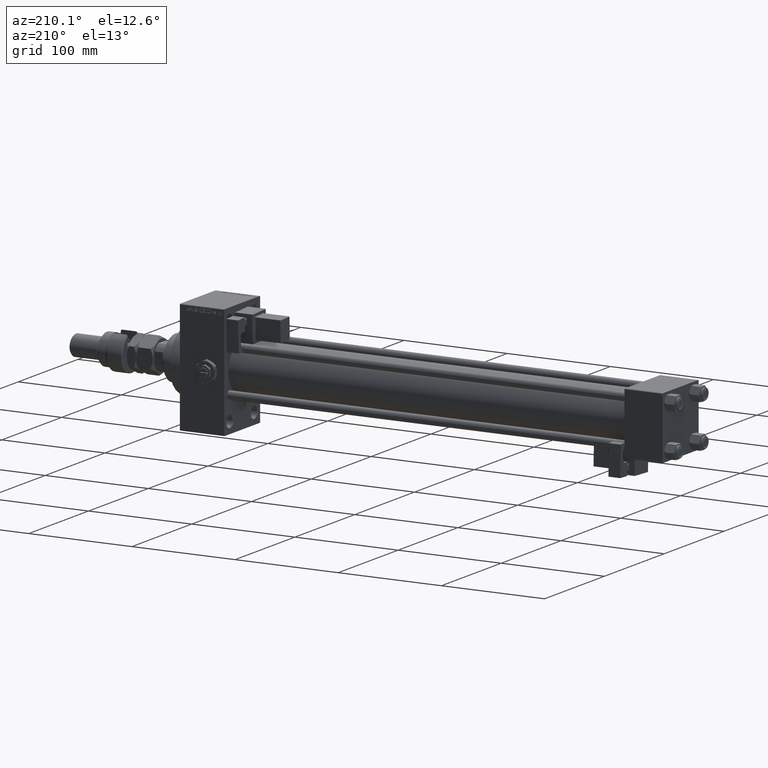
[diagram: clean part render]
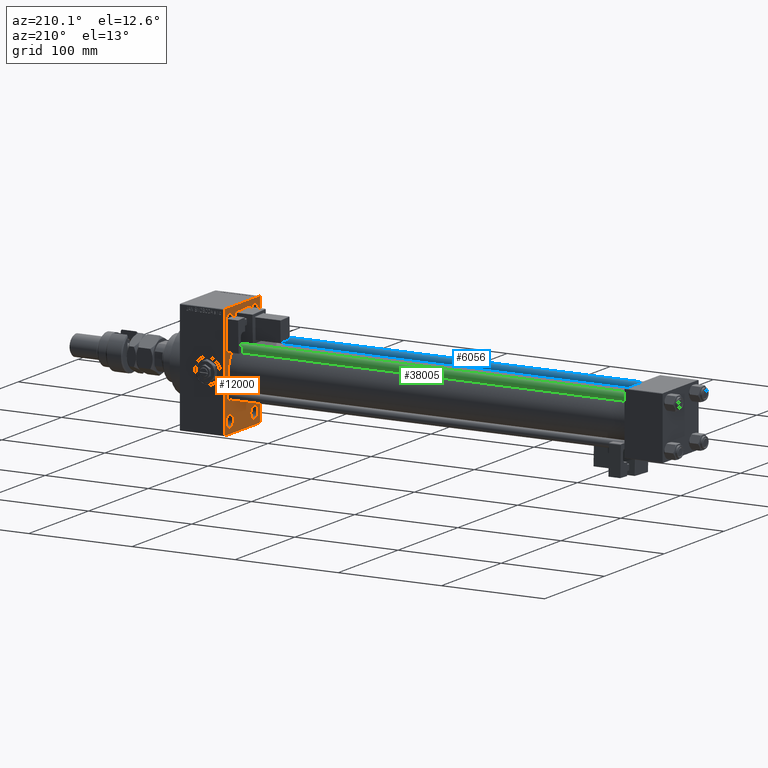
[diagram: same view with three faces highlighted in distinct colors, each labeled with its STEP entity id]
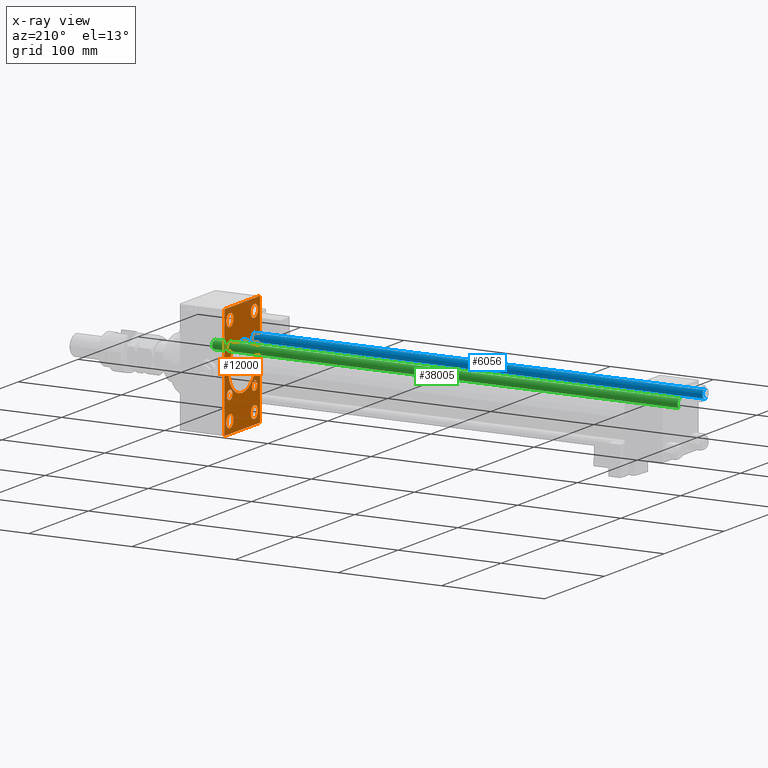
[diagram: x-ray of the same camera — body ghosted, the three highlighted faces saturated]
A machine part, auxiliary view with three faces highlighted in distinct colors.
The next image is the same camera in x-ray (body ghosted, the three faces saturated) — at least one of them is partly hidden behind the body in this view.
Their STEP definitions:

[orange] entity #12000 — the highlighted planar face has unit normal (-1, 0, 0).
#18 = FACE_BOUND ( 'NONE', #28261, .T. ) ;
#103 = CIRCLE ( 'NONE', #28907, 4.500000000000007105 ) ;
#280 = EDGE_CURVE ( 'NONE', #49568, #43497, #7739, .T. ) ;
#419 = ORIENTED_EDGE ( 'NONE', *, *, #6253, .T. ) ;
#464 = EDGE_CURVE ( 'NONE', #31702, #3292, #34796, .T. ) ;
#614 = EDGE_CURVE ( 'NONE', #33560, #20259, #29334, .T. ) ;
#820 = DIRECTION ( 'NONE',  ( 0.000000000000000000, 0.000000000000000000, -1.000000000000000000 ) ) ;
#829 = DIRECTION ( 'NONE',  ( 1.000000000000000000, -0.000000000000000000, 0.000000000000000000 ) ) ;
#1360 = DIRECTION ( 'NONE',  ( 1.000000000000000000, 0.000000000000000000, 0.000000000000000000 ) ) ;
#1432 = EDGE_CURVE ( 'NONE', #20259, #16029, #17971, .T. ) ;
#1434 = CARTESIAN_POINT ( 'NONE',  ( 425.0000000000000000, 29.99999999999999645, 53.99999999999999289 ) ) ;
#2351 = CIRCLE ( 'NONE', #24176, 4.500000000000007105 ) ;
#2649 = CARTESIAN_POINT ( 'NONE',  ( 425.0000000000000000, -42.00000000000216716, -41.99999999999604938 ) ) ;
#2703 = DIRECTION ( 'NONE',  ( 1.000000000000000000, -0.000000000000000000, 0.000000000000000000 ) ) ;
#2764 = CARTESIAN_POINT ( 'NONE',  ( 425.0000000000000000, 20.84999999999999787, -20.85000000000000142 ) ) ;
#3099 = CARTESIAN_POINT ( 'NONE',  ( 425.0000000000000000, 20.50000000000000000, -37.50000000000004974 ) ) ;
#3239 = DIRECTION ( 'NONE',  ( 1.000000000000000000, -0.000000000000000000, 0.000000000000000000 ) ) ;
#3292 = VERTEX_POINT ( 'NONE', #40606 ) ;
#3402 = ORIENTED_EDGE ( 'NONE', *, *, #35435, .T. ) ;
#3443 = CARTESIAN_POINT ( 'NONE',  ( 425.0000000000000000, 20.50000000000000000, 49.49999999999995026 ) ) ;
#5050 = EDGE_LOOP ( 'NONE', ( #39511, #26880 ) ) ;
#5071 = AXIS2_PLACEMENT_3D ( 'NONE', #21901, #13420, #38019 ) ;
#5101 = CARTESIAN_POINT ( 'NONE',  ( 425.0000000000000000, 20.84999999999999787, -20.85000000000000142 ) ) ;
#5180 = VERTEX_POINT ( 'NONE', #43444 ) ;
#5304 = EDGE_CURVE ( 'NONE', #53757, #16678, #103, .T. ) ;
#5717 = DIRECTION ( 'NONE',  ( 0.000000000000000000, 0.000000000000000000, 1.000000000000000000 ) ) ;
#6217 = CARTESIAN_POINT ( 'NONE',  ( 425.0000000000000000, 29.49999999999993960, -54.49999999999999289 ) ) ;
#6253 = EDGE_CURVE ( 'NONE', #21350, #39434, #20214, .T. ) ;
#6463 = ORIENTED_EDGE ( 'NONE', *, *, #5304, .T. ) ;
#6687 = DIRECTION ( 'NONE',  ( 0.000000000000000000, 0.000000000000000000, 1.000000000000000000 ) ) ;
#6831 = VERTEX_POINT ( 'NONE', #3443 ) ;
#6880 = VECTOR ( 'NONE', #17702, 1000.000000000000000 ) ;
#7123 = EDGE_LOOP ( 'NONE', ( #52697, #419 ) ) ;
#7480 = EDGE_LOOP ( 'NONE', ( #42572, #29703 ) ) ;
#7739 = CIRCLE ( 'NONE', #43642, 5.999999999999950262 ) ;
#8166 = VERTEX_POINT ( 'NONE', #26321 ) ;
#8267 = CARTESIAN_POINT ( 'NONE',  ( 425.0000000000000000, 41.99999999999996447, -41.99999999999996447 ) ) ;
#8470 = VECTOR ( 'NONE', #53739, 1000.000000000000000 ) ;
#8846 = ORIENTED_EDGE ( 'NONE', *, *, #280, .T. ) ;
#9337 = AXIS2_PLACEMENT_3D ( 'NONE', #42040, #29746, #33858 ) ;
#9427 = ORIENTED_EDGE ( 'NONE', *, *, #28089, .T. ) ;
#9950 = CARTESIAN_POINT ( 'NONE',  ( 425.0000000000000000, 2.146024240737012665E-16, -23.00000000000000000 ) ) ;
#10012 = ORIENTED_EDGE ( 'NONE', *, *, #39690, .T. ) ;
#10176 = EDGE_CURVE ( 'NONE', #49205, #44414, #51423, .T. ) ;
#10323 = CARTESIAN_POINT ( 'NONE',  ( 425.0000000000000000, -30.00000000000000000, -53.99999999999998579 ) ) ;
#10831 = VERTEX_POINT ( 'NONE', #23906 ) ;
#11026 = CARTESIAN_POINT ( 'NONE',  ( 425.0000000000000000, -20.50000000000000000, 37.50000000000004974 ) ) ;
#11037 = LINE ( 'NONE', #27729, #52407 ) ;
#11166 = CARTESIAN_POINT ( 'NONE',  ( 425.0000000000000000, -20.84999999999999076, 20.85000000000000497 ) ) ;
#11222 = AXIS2_PLACEMENT_3D ( 'NONE', #38995, #44915, #30796 ) ;
#11224 = DIRECTION ( 'NONE',  ( 0.000000000000000000, 0.000000000000000000, 1.000000000000000000 ) ) ;
#11447 = CIRCLE ( 'NONE', #36772, 4.500000000000007105 ) ;
#12000 = ADVANCED_FACE ( 'NONE', ( #36396, #31488, #25171, #20811, #37738, #25440, #21356, #18, #42108, #38007 ), #45663, .T. ) ;
#12002 = AXIS2_PLACEMENT_3D ( 'NONE', #27480, #44147, #6687 ) ;
#12359 = AXIS2_PLACEMENT_3D ( 'NONE', #39341, #1360, #820 ) ;
#12804 = CIRCLE ( 'NONE', #45103, 23.00000000000000000 ) ;
#13099 = VECTOR ( 'NONE', #29598, 1000.000000000000114 ) ;
#13420 = DIRECTION ( 'NONE',  ( 1.000000000000000000, -0.000000000000000000, 0.000000000000000000 ) ) ;
#13650 = EDGE_LOOP ( 'NONE', ( #47853, #3402, #41662, #45295, #30112, #29180, #44083, #16950 ) ) ;
#13866 = AXIS2_PLACEMENT_3D ( 'NONE', #16542, #33215, #46301 ) ;
#13970 = DIRECTION ( 'NONE',  ( 0.000000000000000000, 0.000000000000000000, 1.000000000000000000 ) ) ;
#13994 = CARTESIAN_POINT ( 'NONE',  ( 425.0000000000000000, -30.00000000000000000, 54.50000000000000000 ) ) ;
#14869 = EDGE_CURVE ( 'NONE', #3292, #31702, #15908, .T. ) ;
#15169 = DIRECTION ( 'NONE',  ( -0.000000000000000000, 0.7071067811865843211, 0.7071067811865107133 ) ) ;
#15411 = CARTESIAN_POINT ( 'NONE',  ( 425.0000000000000000, 20.50000000000000000, 43.50000000000000000 ) ) ;
#15419 = CIRCLE ( 'NONE', #43348, 5.999999999999950262 ) ;
#15907 = CIRCLE ( 'NONE', #35993, 5.999999999999950262 ) ;
#15908 = CIRCLE ( 'NONE', #37707, 5.999999999999950262 ) ;
#15940 = VECTOR ( 'NONE', #46342, 1000.000000000000000 ) ;
#16029 = VERTEX_POINT ( 'NONE', #23521 ) ;
#16088 = DIRECTION ( 'NONE',  ( 0.000000000000000000, 0.000000000000000000, 1.000000000000000000 ) ) ;
#16211 = VECTOR ( 'NONE', #29563, 1000.000000000000000 ) ;
#16349 = CARTESIAN_POINT ( 'NONE',  ( 425.0000000000000000, -20.84999999999999076, 20.85000000000000497 ) ) ;
#16414 = CARTESIAN_POINT ( 'NONE',  ( 425.0000000000000000, -20.50000000000000000, -37.50000000000004974 ) ) ;
#16542 = CARTESIAN_POINT ( 'NONE',  ( 425.0000000000000000, -20.50000000000000000, -43.50000000000000000 ) ) ;
#16678 = VERTEX_POINT ( 'NONE', #27758 ) ;
#16950 = ORIENTED_EDGE ( 'NONE', *, *, #614, .T. ) ;
#17217 = CIRCLE ( 'NONE', #47743, 4.500000000000007105 ) ;
#17237 = DIRECTION ( 'NONE',  ( -1.000000000000000000, 0.000000000000000000, -0.000000000000000000 ) ) ;
#17502 = CIRCLE ( 'NONE', #38441, 5.999999999999950262 ) ;
#17702 = DIRECTION ( 'NONE',  ( 0.000000000000000000, -1.000000000000000000, -1.156482317317871478E-16 ) ) ;
#17971 = LINE ( 'NONE', #26174, #6880 ) ;
#18504 = VERTEX_POINT ( 'NONE', #1434 ) ;
#18525 = CARTESIAN_POINT ( 'NONE',  ( 425.0000000000000000, 20.84999999999999787, -16.34999999999999432 ) ) ;
#18652 = VERTEX_POINT ( 'NONE', #44065 ) ;
#18961 = CARTESIAN_POINT ( 'NONE',  ( 425.0000000000000000, -2.602085213965210642E-15, 23.00000000000000000 ) ) ;
#20143 = CARTESIAN_POINT ( 'NONE',  ( 425.0000000000000000, 20.84999999999999787, 25.35000000000000853 ) ) ;
#20214 = CIRCLE ( 'NONE', #12359, 23.00000000000000000 ) ;
#20259 = VERTEX_POINT ( 'NONE', #6217 ) ;
#20732 = VERTEX_POINT ( 'NONE', #39505 ) ;
#20811 = FACE_BOUND ( 'NONE', #7480, .T. ) ;
#20842 = ORIENTED_EDGE ( 'NONE', *, *, #14869, .T. ) ;
#21012 = DIRECTION ( 'NONE',  ( 0.000000000000000000, 0.000000000000000000, 1.000000000000000000 ) ) ;
#21191 = DIRECTION ( 'NONE',  ( 1.000000000000000000, -0.000000000000000000, 0.000000000000000000 ) ) ;
#21350 = VERTEX_POINT ( 'NONE', #9950 ) ;
#21356 = FACE_BOUND ( 'NONE', #46019, .T. ) ;
#21901 = CARTESIAN_POINT ( 'NONE',  ( 425.0000000000000000, 20.84999999999999787, 20.85000000000000142 ) ) ;
#22482 = DIRECTION ( 'NONE',  ( 0.000000000000000000, 0.000000000000000000, -1.000000000000000000 ) ) ;
#22620 = CIRCLE ( 'NONE', #13866, 5.999999999999950262 ) ;
#23521 = CARTESIAN_POINT ( 'NONE',  ( 425.0000000000000000, -29.50000000000005684, -54.50000000000000000 ) ) ;
#23629 = DIRECTION ( 'NONE',  ( 0.000000000000000000, -1.000000000000000000, 1.156482317317871478E-16 ) ) ;
#23906 = CARTESIAN_POINT ( 'NONE',  ( 425.0000000000000000, 29.50000000000004974, 54.49999999999999289 ) ) ;
#24176 = AXIS2_PLACEMENT_3D ( 'NONE', #5101, #25617, #49929 ) ;
#24214 = VERTEX_POINT ( 'NONE', #35603 ) ;
#24542 = EDGE_LOOP ( 'NONE', ( #41287, #8846 ) ) ;
#24601 = DIRECTION ( 'NONE',  ( 1.000000000000000000, -0.000000000000000000, 0.000000000000000000 ) ) ;
#25171 = FACE_BOUND ( 'NONE', #24542, .T. ) ;
#25266 = EDGE_CURVE ( 'NONE', #18504, #33560, #50586, .T. ) ;
#25440 = FACE_BOUND ( 'NONE', #5050, .T. ) ;
#25452 = CARTESIAN_POINT ( 'NONE',  ( 425.0000000000000000, 29.99999999999999645, -53.99999999999993605 ) ) ;
#25617 = DIRECTION ( 'NONE',  ( 1.000000000000000000, -0.000000000000000000, 0.000000000000000000 ) ) ;
#25682 = DIRECTION ( 'NONE',  ( 1.000000000000000000, 0.000000000000000000, 0.000000000000000000 ) ) ;
#25799 = EDGE_LOOP ( 'NONE', ( #20842, #29203 ) ) ;
#26133 = CARTESIAN_POINT ( 'NONE',  ( 425.0000000000000000, 42.00000000000166267, 41.99999999999699440 ) ) ;
#26174 = CARTESIAN_POINT ( 'NONE',  ( 425.0000000000000000, 29.99999999999999645, -54.49999999999999289 ) ) ;
#26321 = CARTESIAN_POINT ( 'NONE',  ( 425.0000000000000000, -20.84999999999999076, 16.34999999999999787 ) ) ;
#26880 = ORIENTED_EDGE ( 'NONE', *, *, #36378, .T. ) ;
#27200 = CARTESIAN_POINT ( 'NONE',  ( 425.0000000000000000, -41.99999999999841549, 42.00000000000278533 ) ) ;
#27447 = DIRECTION ( 'NONE',  ( 0.000000000000000000, 0.000000000000000000, 1.000000000000000000 ) ) ;
#27480 = CARTESIAN_POINT ( 'NONE',  ( 425.0000000000000000, 20.84999999999999787, 20.85000000000000142 ) ) ;
#27531 = CARTESIAN_POINT ( 'NONE',  ( 425.0000000000000000, -20.84999999999999076, 25.35000000000001208 ) ) ;
#27651 = EDGE_CURVE ( 'NONE', #39434, #21350, #12804, .T. ) ;
#27696 = CARTESIAN_POINT ( 'NONE',  ( 425.0000000000000000, -20.84999999999999076, -16.34999999999999787 ) ) ;
#27729 = CARTESIAN_POINT ( 'NONE',  ( 425.0000000000000000, 29.99999999999999645, 54.49999999999999289 ) ) ;
#27758 = CARTESIAN_POINT ( 'NONE',  ( 425.0000000000000000, -20.84999999999999076, -25.35000000000001208 ) ) ;
#28089 = EDGE_CURVE ( 'NONE', #18652, #52439, #2351, .T. ) ;
#28132 = ORIENTED_EDGE ( 'NONE', *, *, #39140, .T. ) ;
#28261 = EDGE_LOOP ( 'NONE', ( #6463, #36510 ) ) ;
#28660 = VERTEX_POINT ( 'NONE', #16414 ) ;
#28907 = AXIS2_PLACEMENT_3D ( 'NONE', #33310, #49687, #21012 ) ;
#29026 = EDGE_CURVE ( 'NONE', #8166, #43291, #17217, .T. ) ;
#29150 = VERTEX_POINT ( 'NONE', #38989 ) ;
#29180 = ORIENTED_EDGE ( 'NONE', *, *, #49730, .T. ) ;
#29203 = ORIENTED_EDGE ( 'NONE', *, *, #464, .T. ) ;
#29334 = LINE ( 'NONE', #8267, #13099 ) ;
#29560 = DIRECTION ( 'NONE',  ( 1.000000000000000000, -0.000000000000000000, 0.000000000000000000 ) ) ;
#29563 = DIRECTION ( 'NONE',  ( 0.000000000000000000, 0.000000000000000000, -1.000000000000000000 ) ) ;
#29598 = DIRECTION ( 'NONE',  ( -0.000000000000000000, -0.7071067811865474617, -0.7071067811865474617 ) ) ;
#29635 = EDGE_CURVE ( 'NONE', #43291, #8166, #41557, .T. ) ;
#29703 = ORIENTED_EDGE ( 'NONE', *, *, #30803, .T. ) ;
#29746 = DIRECTION ( 'NONE',  ( 1.000000000000000000, -0.000000000000000000, 0.000000000000000000 ) ) ;
#30112 = ORIENTED_EDGE ( 'NONE', *, *, #42356, .F. ) ;
#30232 = LINE ( 'NONE', #26133, #15940 ) ;
#30796 = DIRECTION ( 'NONE',  ( 0.000000000000000000, 0.000000000000000000, 1.000000000000000000 ) ) ;
#30803 = EDGE_CURVE ( 'NONE', #29150, #6831, #15419, .T. ) ;
#31488 = FACE_BOUND ( 'NONE', #40062, .T. ) ;
#31702 = VERTEX_POINT ( 'NONE', #11026 ) ;
#31751 = DIRECTION ( 'NONE',  ( 1.000000000000000000, -0.000000000000000000, 0.000000000000000000 ) ) ;
#32352 = DIRECTION ( 'NONE',  ( 1.000000000000000000, -0.000000000000000000, 0.000000000000000000 ) ) ;
#32838 = CARTESIAN_POINT ( 'NONE',  ( 425.0000000000000000, 0.000000000000000000, 0.000000000000000000 ) ) ;
#33215 = DIRECTION ( 'NONE',  ( 1.000000000000000000, -0.000000000000000000, 0.000000000000000000 ) ) ;
#33310 = CARTESIAN_POINT ( 'NONE',  ( 425.0000000000000000, -20.84999999999999076, -20.85000000000000497 ) ) ;
#33552 = EDGE_CURVE ( 'NONE', #43352, #20732, #37346, .T. ) ;
#33560 = VERTEX_POINT ( 'NONE', #25452 ) ;
#33858 = DIRECTION ( 'NONE',  ( 0.000000000000000000, 0.000000000000000000, 1.000000000000000000 ) ) ;
#34166 = ORIENTED_EDGE ( 'NONE', *, *, #29026, .T. ) ;
#34796 = CIRCLE ( 'NONE', #11222, 5.999999999999950262 ) ;
#35328 = EDGE_CURVE ( 'NONE', #43497, #49568, #48636, .T. ) ;
#35435 = EDGE_CURVE ( 'NONE', #16029, #44414, #40089, .T. ) ;
#35477 = AXIS2_PLACEMENT_3D ( 'NONE', #11166, #2703, #5717 ) ;
#35603 = CARTESIAN_POINT ( 'NONE',  ( 425.0000000000000000, -29.49999999999988987, 54.50000000000000000 ) ) ;
#35741 = CARTESIAN_POINT ( 'NONE',  ( 425.0000000000000000, 20.50000000000000000, -49.49999999999995026 ) ) ;
#35993 = AXIS2_PLACEMENT_3D ( 'NONE', #50530, #24601, #49457 ) ;
#36046 = DIRECTION ( 'NONE',  ( 1.000000000000000000, -0.000000000000000000, 0.000000000000000000 ) ) ;
#36175 = ORIENTED_EDGE ( 'NONE', *, *, #45165, .T. ) ;
#36314 = EDGE_CURVE ( 'NONE', #49205, #24214, #47680, .T. ) ;
#36378 = EDGE_CURVE ( 'NONE', #20732, #43352, #53905, .T. ) ;
#36396 = FACE_BOUND ( 'NONE', #25799, .T. ) ;
#36510 = ORIENTED_EDGE ( 'NONE', *, *, #44028, .T. ) ;
#36772 = AXIS2_PLACEMENT_3D ( 'NONE', #50045, #29560, #36951 ) ;
#36951 = DIRECTION ( 'NONE',  ( 0.000000000000000000, 0.000000000000000000, 1.000000000000000000 ) ) ;
#37346 = CIRCLE ( 'NONE', #5071, 4.500000000000007105 ) ;
#37468 = DIRECTION ( 'NONE',  ( -0.000000000000000000, 0.000000000000000000, 1.000000000000000000 ) ) ;
#37707 = AXIS2_PLACEMENT_3D ( 'NONE', #42111, #829, #45930 ) ;
#37738 = FACE_BOUND ( 'NONE', #45887, .T. ) ;
#38007 = FACE_OUTER_BOUND ( 'NONE', #13650, .T. ) ;
#38019 = DIRECTION ( 'NONE',  ( 0.000000000000000000, 0.000000000000000000, 1.000000000000000000 ) ) ;
#38367 = CIRCLE ( 'NONE', #49714, 4.500000000000007105 ) ;
#38441 = AXIS2_PLACEMENT_3D ( 'NONE', #15411, #32352, #27447 ) ;
#38989 = CARTESIAN_POINT ( 'NONE',  ( 425.0000000000000000, 20.50000000000000000, 37.50000000000004974 ) ) ;
#38995 = CARTESIAN_POINT ( 'NONE',  ( 425.0000000000000000, -20.50000000000000000, 43.50000000000000000 ) ) ;
#39140 = EDGE_CURVE ( 'NONE', #5180, #28660, #22620, .T. ) ;
#39341 = CARTESIAN_POINT ( 'NONE',  ( 425.0000000000000000, -2.602085213965210642E-15, 0.000000000000000000 ) ) ;
#39434 = VERTEX_POINT ( 'NONE', #18961 ) ;
#39505 = CARTESIAN_POINT ( 'NONE',  ( 425.0000000000000000, 20.84999999999999787, 16.34999999999999432 ) ) ;
#39511 = ORIENTED_EDGE ( 'NONE', *, *, #33552, .T. ) ;
#39690 = EDGE_CURVE ( 'NONE', #52439, #18652, #38367, .T. ) ;
#40062 = EDGE_LOOP ( 'NONE', ( #36175, #28132 ) ) ;
#40089 = LINE ( 'NONE', #2649, #8470 ) ;
#40167 = AXIS2_PLACEMENT_3D ( 'NONE', #32838, #17237, #37468 ) ;
#40606 = CARTESIAN_POINT ( 'NONE',  ( 425.0000000000000000, -20.50000000000000000, 49.49999999999995026 ) ) ;
#40945 = DIRECTION ( 'NONE',  ( 0.000000000000000000, 0.000000000000000000, 1.000000000000000000 ) ) ;
#41287 = ORIENTED_EDGE ( 'NONE', *, *, #35328, .T. ) ;
#41557 = CIRCLE ( 'NONE', #35477, 4.500000000000007105 ) ;
#41590 = CARTESIAN_POINT ( 'NONE',  ( 425.0000000000000000, 29.99999999999999645, 54.49999999999999289 ) ) ;
#41611 = EDGE_CURVE ( 'NONE', #6831, #29150, #17502, .T. ) ;
#41662 = ORIENTED_EDGE ( 'NONE', *, *, #10176, .F. ) ;
#41808 = CARTESIAN_POINT ( 'NONE',  ( 425.0000000000000000, -2.602085213965210642E-15, 0.000000000000000000 ) ) ;
#42040 = CARTESIAN_POINT ( 'NONE',  ( 425.0000000000000000, 20.50000000000000000, -43.50000000000000000 ) ) ;
#42108 = FACE_BOUND ( 'NONE', #7123, .T. ) ;
#42111 = CARTESIAN_POINT ( 'NONE',  ( 425.0000000000000000, -20.50000000000000000, 43.50000000000000000 ) ) ;
#42356 = EDGE_CURVE ( 'NONE', #10831, #24214, #11037, .T. ) ;
#42572 = ORIENTED_EDGE ( 'NONE', *, *, #41611, .T. ) ;
#43291 = VERTEX_POINT ( 'NONE', #27531 ) ;
#43348 = AXIS2_PLACEMENT_3D ( 'NONE', #51400, #21191, #13970 ) ;
#43352 = VERTEX_POINT ( 'NONE', #20143 ) ;
#43444 = CARTESIAN_POINT ( 'NONE',  ( 425.0000000000000000, -20.50000000000000000, -49.49999999999995026 ) ) ;
#43476 = ORIENTED_EDGE ( 'NONE', *, *, #29635, .T. ) ;
#43497 = VERTEX_POINT ( 'NONE', #3099 ) ;
#43642 = AXIS2_PLACEMENT_3D ( 'NONE', #44779, #3239, #16088 ) ;
#44028 = EDGE_CURVE ( 'NONE', #16678, #53757, #11447, .T. ) ;
#44065 = CARTESIAN_POINT ( 'NONE',  ( 425.0000000000000000, 20.84999999999999787, -25.35000000000000853 ) ) ;
#44083 = ORIENTED_EDGE ( 'NONE', *, *, #25266, .T. ) ;
#44147 = DIRECTION ( 'NONE',  ( 1.000000000000000000, -0.000000000000000000, 0.000000000000000000 ) ) ;
#44414 = VERTEX_POINT ( 'NONE', #10323 ) ;
#44779 = CARTESIAN_POINT ( 'NONE',  ( 425.0000000000000000, 20.50000000000000000, -43.50000000000000000 ) ) ;
#44915 = DIRECTION ( 'NONE',  ( 1.000000000000000000, -0.000000000000000000, 0.000000000000000000 ) ) ;
#45103 = AXIS2_PLACEMENT_3D ( 'NONE', #41808, #25682, #46441 ) ;
#45165 = EDGE_CURVE ( 'NONE', #28660, #5180, #15907, .T. ) ;
#45295 = ORIENTED_EDGE ( 'NONE', *, *, #36314, .T. ) ;
#45663 = PLANE ( 'NONE',  #40167 ) ;
#45887 = EDGE_LOOP ( 'NONE', ( #43476, #34166 ) ) ;
#45930 = DIRECTION ( 'NONE',  ( 0.000000000000000000, 0.000000000000000000, 1.000000000000000000 ) ) ;
#46019 = EDGE_LOOP ( 'NONE', ( #10012, #9427 ) ) ;
#46301 = DIRECTION ( 'NONE',  ( 0.000000000000000000, 0.000000000000000000, 1.000000000000000000 ) ) ;
#46342 = DIRECTION ( 'NONE',  ( 0.000000000000000000, 0.7071067811865081598, -0.7071067811865868746 ) ) ;
#46441 = DIRECTION ( 'NONE',  ( 0.000000000000000000, 0.000000000000000000, -1.000000000000000000 ) ) ;
#47680 = LINE ( 'NONE', #27200, #48673 ) ;
#47743 = AXIS2_PLACEMENT_3D ( 'NONE', #16349, #36046, #40945 ) ;
#47853 = ORIENTED_EDGE ( 'NONE', *, *, #1432, .T. ) ;
#48464 = VECTOR ( 'NONE', #22482, 1000.000000000000000 ) ;
#48636 = CIRCLE ( 'NONE', #9337, 5.999999999999950262 ) ;
#48673 = VECTOR ( 'NONE', #15169, 1000.000000000000000 ) ;
#49205 = VERTEX_POINT ( 'NONE', #52192 ) ;
#49457 = DIRECTION ( 'NONE',  ( 0.000000000000000000, 0.000000000000000000, 1.000000000000000000 ) ) ;
#49568 = VERTEX_POINT ( 'NONE', #35741 ) ;
#49687 = DIRECTION ( 'NONE',  ( 1.000000000000000000, -0.000000000000000000, 0.000000000000000000 ) ) ;
#49714 = AXIS2_PLACEMENT_3D ( 'NONE', #2764, #31751, #11224 ) ;
#49730 = EDGE_CURVE ( 'NONE', #10831, #18504, #30232, .T. ) ;
#49929 = DIRECTION ( 'NONE',  ( 0.000000000000000000, 0.000000000000000000, 1.000000000000000000 ) ) ;
#50045 = CARTESIAN_POINT ( 'NONE',  ( 425.0000000000000000, -20.84999999999999076, -20.85000000000000497 ) ) ;
#50530 = CARTESIAN_POINT ( 'NONE',  ( 425.0000000000000000, -20.50000000000000000, -43.50000000000000000 ) ) ;
#50586 = LINE ( 'NONE', #41590, #16211 ) ;
#51400 = CARTESIAN_POINT ( 'NONE',  ( 425.0000000000000000, 20.50000000000000000, 43.50000000000000000 ) ) ;
#51423 = LINE ( 'NONE', #13994, #48464 ) ;
#52192 = CARTESIAN_POINT ( 'NONE',  ( 425.0000000000000000, -30.00000000000000000, 53.99999999999994316 ) ) ;
#52407 = VECTOR ( 'NONE', #23629, 1000.000000000000000 ) ;
#52439 = VERTEX_POINT ( 'NONE', #18525 ) ;
#52697 = ORIENTED_EDGE ( 'NONE', *, *, #27651, .T. ) ;
#53739 = DIRECTION ( 'NONE',  ( 0.000000000000000000, -0.7071067811864960584, 0.7071067811865990871 ) ) ;
#53757 = VERTEX_POINT ( 'NONE', #27696 ) ;
#53905 = CIRCLE ( 'NONE', #12002, 4.500000000000007105 ) ;

[blue] entity #6056 — the highlighted cylindrical surface (edge-blend (fillet) strip) has radius 4 mm, axis along (1, 0, 0).
#874 = AXIS2_PLACEMENT_3D ( 'NONE', #13192, #16231, #32901 ) ;
#1068 = EDGE_CURVE ( 'NONE', #48665, #45102, #51101, .T. ) ;
#1766 = CIRCLE ( 'NONE', #874, 4.000000000000000000 ) ;
#4337 = CARTESIAN_POINT ( 'NONE',  ( -4.000000000000000000, 0.000000000000000000, 452.0000000000000000 ) ) ;
#4425 = ORIENTED_EDGE ( 'NONE', *, *, #20037, .T. ) ;
#6056 = ADVANCED_FACE ( 'NONE', ( #47122 ), #32290, .T. ) ;
#9681 = CARTESIAN_POINT ( 'NONE',  ( 0.000000000000000000, 0.000000000000000000, 452.0000000000000000 ) ) ;
#10762 = ORIENTED_EDGE ( 'NONE', *, *, #11745, .T. ) ;
#11745 = EDGE_CURVE ( 'NONE', #48665, #52577, #1766, .T. ) ;
#13192 = CARTESIAN_POINT ( 'NONE',  ( 0.000000000000000000, 0.000000000000000000, 451.5000000000000000 ) ) ;
#13665 = DIRECTION ( 'NONE',  ( -0.000000000000000000, -0.000000000000000000, -1.000000000000000000 ) ) ;
#14733 = ORIENTED_EDGE ( 'NONE', *, *, #21819, .T. ) ;
#16231 = DIRECTION ( 'NONE',  ( 0.000000000000000000, 0.000000000000000000, -1.000000000000000000 ) ) ;
#20037 = EDGE_CURVE ( 'NONE', #52577, #49605, #53821, .T. ) ;
#21819 = EDGE_CURVE ( 'NONE', #49605, #45102, #42270, .T. ) ;
#22547 = DIRECTION ( 'NONE',  ( -1.000000000000000000, 0.000000000000000000, 0.000000000000000000 ) ) ;
#25053 = CARTESIAN_POINT ( 'NONE',  ( -4.000000000000000000, 0.000000000000000000, 451.5000000000000000 ) ) ;
#25702 = CARTESIAN_POINT ( 'NONE',  ( 4.000000000000000000, 4.898587196589412829E-16, 452.0000000000000000 ) ) ;
#32290 = CYLINDRICAL_SURFACE ( 'NONE', #44654, 4.000000000000000000 ) ;
#32901 = DIRECTION ( 'NONE',  ( 1.000000000000000000, 0.000000000000000000, 0.000000000000000000 ) ) ;
#36903 = ORIENTED_EDGE ( 'NONE', *, *, #1068, .F. ) ;
#37335 = CARTESIAN_POINT ( 'NONE',  ( 0.000000000000000000, 0.000000000000000000, 0.5000000000000004441 ) ) ;
#38101 = CARTESIAN_POINT ( 'NONE',  ( 4.000000000000000000, 4.898587196589412829E-16, 451.5000000000000000 ) ) ;
#40514 = AXIS2_PLACEMENT_3D ( 'NONE', #37335, #49886, #44717 ) ;
#41536 = CARTESIAN_POINT ( 'NONE',  ( 4.000000000000000000, 4.898587196589412829E-16, 0.5000000000000004441 ) ) ;
#42270 = CIRCLE ( 'NONE', #40514, 4.000000000000000000 ) ;
#43306 = DIRECTION ( 'NONE',  ( -0.000000000000000000, -0.000000000000000000, -1.000000000000000000 ) ) ;
#44654 = AXIS2_PLACEMENT_3D ( 'NONE', #9681, #43306, #22547 ) ;
#44717 = DIRECTION ( 'NONE',  ( 1.000000000000000000, 0.000000000000000000, 0.000000000000000000 ) ) ;
#45080 = DIRECTION ( 'NONE',  ( -0.000000000000000000, -0.000000000000000000, -1.000000000000000000 ) ) ;
#45102 = VERTEX_POINT ( 'NONE', #41536 ) ;
#45652 = VECTOR ( 'NONE', #45080, 1000.000000000000000 ) ;
#45850 = EDGE_LOOP ( 'NONE', ( #36903, #10762, #4425, #14733 ) ) ;
#47122 = FACE_OUTER_BOUND ( 'NONE', #45850, .T. ) ;
#48665 = VERTEX_POINT ( 'NONE', #38101 ) ;
#49605 = VERTEX_POINT ( 'NONE', #53205 ) ;
#49643 = VECTOR ( 'NONE', #13665, 1000.000000000000000 ) ;
#49886 = DIRECTION ( 'NONE',  ( -0.000000000000000000, -0.000000000000000000, 1.000000000000000000 ) ) ;
#51101 = LINE ( 'NONE', #25702, #49643 ) ;
#52577 = VERTEX_POINT ( 'NONE', #25053 ) ;
#53205 = CARTESIAN_POINT ( 'NONE',  ( -4.000000000000000000, 0.000000000000000000, 0.5000000000000004441 ) ) ;
#53821 = LINE ( 'NONE', #4337, #45652 ) ;

[green] entity #38005 — the highlighted cylindrical surface (edge-blend (fillet) strip) has radius 4 mm, axis along (-1, -0, 0).
#1068 = EDGE_CURVE ( 'NONE', #48665, #45102, #51101, .T. ) ;
#1527 = DIRECTION ( 'NONE',  ( 1.000000000000000000, 0.000000000000000000, 0.000000000000000000 ) ) ;
#4337 = CARTESIAN_POINT ( 'NONE',  ( -4.000000000000000000, 0.000000000000000000, 452.0000000000000000 ) ) ;
#4422 = CIRCLE ( 'NONE', #18400, 4.000000000000000000 ) ;
#10877 = DIRECTION ( 'NONE',  ( -0.000000000000000000, -0.000000000000000000, -1.000000000000000000 ) ) ;
#12429 = EDGE_CURVE ( 'NONE', #45102, #49605, #4422, .T. ) ;
#12455 = ORIENTED_EDGE ( 'NONE', *, *, #1068, .T. ) ;
#13665 = DIRECTION ( 'NONE',  ( -0.000000000000000000, -0.000000000000000000, -1.000000000000000000 ) ) ;
#17652 = CIRCLE ( 'NONE', #22893, 4.000000000000000000 ) ;
#17904 = DIRECTION ( 'NONE',  ( 1.000000000000000000, 0.000000000000000000, 0.000000000000000000 ) ) ;
#18400 = AXIS2_PLACEMENT_3D ( 'NONE', #40023, #26377, #17904 ) ;
#19088 = CYLINDRICAL_SURFACE ( 'NONE', #51352, 4.000000000000000000 ) ;
#20037 = EDGE_CURVE ( 'NONE', #52577, #49605, #53821, .T. ) ;
#22327 = CARTESIAN_POINT ( 'NONE',  ( 0.000000000000000000, 0.000000000000000000, 451.5000000000000000 ) ) ;
#22893 = AXIS2_PLACEMENT_3D ( 'NONE', #22327, #38977, #1527 ) ;
#25053 = CARTESIAN_POINT ( 'NONE',  ( -4.000000000000000000, 0.000000000000000000, 451.5000000000000000 ) ) ;
#25702 = CARTESIAN_POINT ( 'NONE',  ( 4.000000000000000000, 4.898587196589412829E-16, 452.0000000000000000 ) ) ;
#26285 = ORIENTED_EDGE ( 'NONE', *, *, #12429, .T. ) ;
#26377 = DIRECTION ( 'NONE',  ( -0.000000000000000000, -0.000000000000000000, 1.000000000000000000 ) ) ;
#27153 = ORIENTED_EDGE ( 'NONE', *, *, #45669, .T. ) ;
#27562 = DIRECTION ( 'NONE',  ( -1.000000000000000000, 0.000000000000000000, 0.000000000000000000 ) ) ;
#38005 = ADVANCED_FACE ( 'NONE', ( #39857 ), #19088, .T. ) ;
#38101 = CARTESIAN_POINT ( 'NONE',  ( 4.000000000000000000, 4.898587196589412829E-16, 451.5000000000000000 ) ) ;
#38977 = DIRECTION ( 'NONE',  ( 0.000000000000000000, 0.000000000000000000, -1.000000000000000000 ) ) ;
#39857 = FACE_OUTER_BOUND ( 'NONE', #46968, .T. ) ;
#40023 = CARTESIAN_POINT ( 'NONE',  ( 0.000000000000000000, 0.000000000000000000, 0.5000000000000004441 ) ) ;
#41536 = CARTESIAN_POINT ( 'NONE',  ( 4.000000000000000000, 4.898587196589412829E-16, 0.5000000000000004441 ) ) ;
#42623 = ORIENTED_EDGE ( 'NONE', *, *, #20037, .F. ) ;
#45080 = DIRECTION ( 'NONE',  ( -0.000000000000000000, -0.000000000000000000, -1.000000000000000000 ) ) ;
#45102 = VERTEX_POINT ( 'NONE', #41536 ) ;
#45652 = VECTOR ( 'NONE', #45080, 1000.000000000000000 ) ;
#45669 = EDGE_CURVE ( 'NONE', #52577, #48665, #17652, .T. ) ;
#46968 = EDGE_LOOP ( 'NONE', ( #27153, #12455, #26285, #42623 ) ) ;
#48314 = CARTESIAN_POINT ( 'NONE',  ( 0.000000000000000000, 0.000000000000000000, 452.0000000000000000 ) ) ;
#48665 = VERTEX_POINT ( 'NONE', #38101 ) ;
#49605 = VERTEX_POINT ( 'NONE', #53205 ) ;
#49643 = VECTOR ( 'NONE', #13665, 1000.000000000000000 ) ;
#51101 = LINE ( 'NONE', #25702, #49643 ) ;
#51352 = AXIS2_PLACEMENT_3D ( 'NONE', #48314, #10877, #27562 ) ;
#52577 = VERTEX_POINT ( 'NONE', #25053 ) ;
#53205 = CARTESIAN_POINT ( 'NONE',  ( -4.000000000000000000, 0.000000000000000000, 0.5000000000000004441 ) ) ;
#53821 = LINE ( 'NONE', #4337, #45652 ) ;